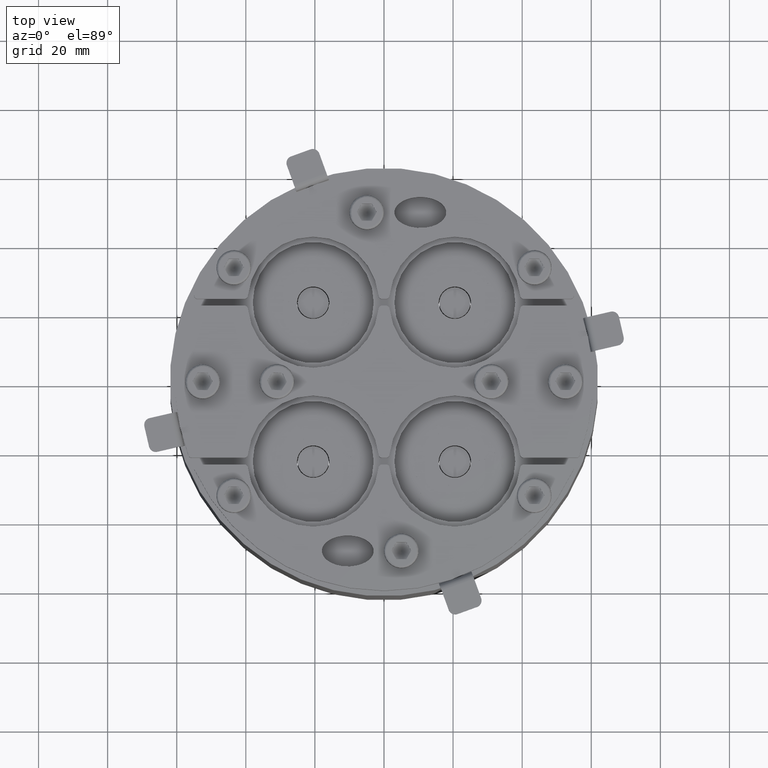
[diagram: clean part render]
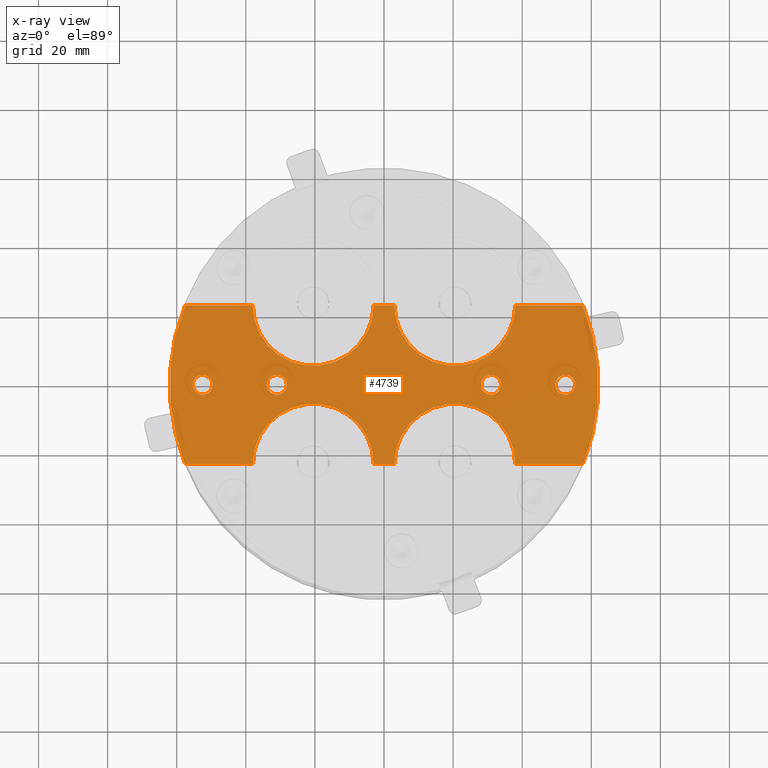
[diagram: x-ray — body ghosted, one internal face saturated and labeled with its STEP entity id]
A machine part, top view, then the same camera in x-ray: the body is ghosted and one INTERNAL B-rep face — a face not visible from any outside direction — is saturated and labeled: STEP entity #4739.
In plain terms, the highlighted planar face has unit normal (0, -0, 1).
Its self-contained STEP definition (entity closure, byte-faithful):
#383=FACE_BOUND('',#1003,.T.);
#384=FACE_BOUND('',#1004,.T.);
#385=FACE_BOUND('',#1005,.T.);
#386=FACE_BOUND('',#1006,.T.);
#461=PLANE('',#5473);
#694=FACE_OUTER_BOUND('',#1002,.T.);
#1002=EDGE_LOOP('',(#3991,#3992,#3993,#3994,#3995,#3996,#3997,#3998,#3999,
#4000,#4001,#4002));
#1003=EDGE_LOOP('',(#4003));
#1004=EDGE_LOOP('',(#4004));
#1005=EDGE_LOOP('',(#4005));
#1006=EDGE_LOOP('',(#4006));
#1322=LINE('',#8063,#1689);
#1327=LINE('',#8077,#1694);
#1331=LINE('',#8089,#1698);
#1335=LINE('',#8101,#1702);
#1339=LINE('',#8113,#1706);
#1343=LINE('',#8125,#1710);
#1689=VECTOR('',#6566,10.);
#1694=VECTOR('',#6579,10.);
#1698=VECTOR('',#6591,10.);
#1702=VECTOR('',#6603,10.);
#1706=VECTOR('',#6615,10.);
#1710=VECTOR('',#6627,10.);
#2021=CIRCLE('',#5437,2.85);
#2023=CIRCLE('',#5440,2.85);
#2025=CIRCLE('',#5443,2.85);
#2027=CIRCLE('',#5446,2.85);
#2029=CIRCLE('',#5450,17.5);
#2031=CIRCLE('',#5454,17.5);
#2033=CIRCLE('',#5458,62.);
#2035=CIRCLE('',#5462,17.5);
#2037=CIRCLE('',#5466,17.5);
#2039=CIRCLE('',#5470,62.);
#2357=VERTEX_POINT('',#8037);
#2359=VERTEX_POINT('',#8043);
#2361=VERTEX_POINT('',#8049);
#2363=VERTEX_POINT('',#8055);
#2365=VERTEX_POINT('',#8061);
#2366=VERTEX_POINT('',#8062);
#2369=VERTEX_POINT('',#8070);
#2371=VERTEX_POINT('',#8076);
#2373=VERTEX_POINT('',#8082);
#2375=VERTEX_POINT('',#8088);
#2377=VERTEX_POINT('',#8094);
#2379=VERTEX_POINT('',#8100);
#2381=VERTEX_POINT('',#8106);
#2383=VERTEX_POINT('',#8112);
#2385=VERTEX_POINT('',#8118);
#2387=VERTEX_POINT('',#8124);
#2905=EDGE_CURVE('',#2357,#2357,#2021,.T.);
#2908=EDGE_CURVE('',#2359,#2359,#2023,.T.);
#2911=EDGE_CURVE('',#2361,#2361,#2025,.T.);
#2914=EDGE_CURVE('',#2363,#2363,#2027,.T.);
#2917=EDGE_CURVE('',#2365,#2366,#1322,.T.);
#2921=EDGE_CURVE('',#2369,#2365,#2029,.T.);
#2924=EDGE_CURVE('',#2371,#2369,#1327,.T.);
#2927=EDGE_CURVE('',#2373,#2371,#2031,.T.);
#2930=EDGE_CURVE('',#2375,#2373,#1331,.T.);
#2933=EDGE_CURVE('',#2377,#2375,#2033,.T.);
#2936=EDGE_CURVE('',#2379,#2377,#1335,.T.);
#2939=EDGE_CURVE('',#2381,#2379,#2035,.T.);
#2942=EDGE_CURVE('',#2383,#2381,#1339,.T.);
#2945=EDGE_CURVE('',#2385,#2383,#2037,.T.);
#2948=EDGE_CURVE('',#2387,#2385,#1343,.T.);
#2951=EDGE_CURVE('',#2366,#2387,#2039,.T.);
#3991=ORIENTED_EDGE('',*,*,#2951,.F.);
#3992=ORIENTED_EDGE('',*,*,#2917,.F.);
#3993=ORIENTED_EDGE('',*,*,#2921,.F.);
#3994=ORIENTED_EDGE('',*,*,#2924,.F.);
#3995=ORIENTED_EDGE('',*,*,#2927,.F.);
#3996=ORIENTED_EDGE('',*,*,#2930,.F.);
#3997=ORIENTED_EDGE('',*,*,#2933,.F.);
#3998=ORIENTED_EDGE('',*,*,#2936,.F.);
#3999=ORIENTED_EDGE('',*,*,#2939,.F.);
#4000=ORIENTED_EDGE('',*,*,#2942,.F.);
#4001=ORIENTED_EDGE('',*,*,#2945,.F.);
#4002=ORIENTED_EDGE('',*,*,#2948,.F.);
#4003=ORIENTED_EDGE('',*,*,#2905,.T.);
#4004=ORIENTED_EDGE('',*,*,#2908,.T.);
#4005=ORIENTED_EDGE('',*,*,#2911,.T.);
#4006=ORIENTED_EDGE('',*,*,#2914,.T.);
#4739=ADVANCED_FACE('',(#694,#383,#384,#385,#386),#461,.F.);
#5437=AXIS2_PLACEMENT_3D('',#8038,#6538,#6539);
#5440=AXIS2_PLACEMENT_3D('',#8044,#6545,#6546);
#5443=AXIS2_PLACEMENT_3D('',#8050,#6552,#6553);
#5446=AXIS2_PLACEMENT_3D('',#8056,#6559,#6560);
#5450=AXIS2_PLACEMENT_3D('',#8071,#6572,#6573);
#5454=AXIS2_PLACEMENT_3D('',#8083,#6584,#6585);
#5458=AXIS2_PLACEMENT_3D('',#8095,#6596,#6597);
#5462=AXIS2_PLACEMENT_3D('',#8107,#6608,#6609);
#5466=AXIS2_PLACEMENT_3D('',#8119,#6620,#6621);
#5470=AXIS2_PLACEMENT_3D('',#8130,#6632,#6633);
#5473=AXIS2_PLACEMENT_3D('',#8133,#6638,#6639);
#6538=DIRECTION('center_axis',(0.,0.,1.));
#6539=DIRECTION('ref_axis',(1.,0.,0.));
#6545=DIRECTION('center_axis',(0.,0.,1.));
#6546=DIRECTION('ref_axis',(1.,0.,0.));
#6552=DIRECTION('center_axis',(0.,0.,1.));
#6553=DIRECTION('ref_axis',(1.,0.,0.));
#6559=DIRECTION('center_axis',(0.,0.,1.));
#6560=DIRECTION('ref_axis',(1.,0.,0.));
#6566=DIRECTION('',(-1.,0.,0.));
#6572=DIRECTION('center_axis',(0.,0.,-1.));
#6573=DIRECTION('ref_axis',(-1.,0.,0.));
#6579=DIRECTION('',(-1.,0.,0.));
#6584=DIRECTION('center_axis',(0.,0.,-1.));
#6585=DIRECTION('ref_axis',(-1.,0.,0.));
#6591=DIRECTION('',(-1.,0.,0.));
#6596=DIRECTION('center_axis',(0.,0.,1.));
#6597=DIRECTION('ref_axis',(1.,0.,0.));
#6603=DIRECTION('',(1.,0.,0.));
#6608=DIRECTION('center_axis',(0.,0.,-1.));
#6609=DIRECTION('ref_axis',(-1.,0.,0.));
#6615=DIRECTION('',(1.,0.,0.));
#6620=DIRECTION('center_axis',(0.,0.,-1.));
#6621=DIRECTION('ref_axis',(-1.,0.,0.));
#6627=DIRECTION('',(1.,0.,0.));
#6632=DIRECTION('center_axis',(0.,0.,1.));
#6633=DIRECTION('ref_axis',(1.,0.,0.));
#6638=DIRECTION('center_axis',(0.,0.,1.));
#6639=DIRECTION('ref_axis',(1.,0.,0.));
#8037=CARTESIAN_POINT('',(49.65,-3.14352690272614E-14,0.));
#8038=CARTESIAN_POINT('Origin',(52.5,-3.10862446895044E-14,0.));
#8043=CARTESIAN_POINT('',(-55.35,-1.81125927317595E-14,0.));
#8044=CARTESIAN_POINT('Origin',(-52.5,-1.77635683940025E-14,0.));
#8049=CARTESIAN_POINT('',(-33.85,-3.49024337756996E-16,0.));
#8050=CARTESIAN_POINT('Origin',(-31.,0.,0.));
#8055=CARTESIAN_POINT('',(28.15,-3.49024337756996E-16,0.));
#8056=CARTESIAN_POINT('Origin',(31.,0.,0.));
#8061=CARTESIAN_POINT('',(-38.,23.,0.));
#8062=CARTESIAN_POINT('',(-57.5760366819391,23.,0.));
#8063=CARTESIAN_POINT('',(-38.,23.,0.));
#8070=CARTESIAN_POINT('',(-3.,23.,0.));
#8071=CARTESIAN_POINT('Origin',(-20.5,23.,0.));
#8076=CARTESIAN_POINT('',(3.00000000000001,23.,0.));
#8077=CARTESIAN_POINT('',(3.00000000000001,23.,0.));
#8082=CARTESIAN_POINT('',(38.,23.,0.));
#8083=CARTESIAN_POINT('Origin',(20.5,23.,0.));
#8088=CARTESIAN_POINT('',(57.5760366819391,23.,0.));
#8089=CARTESIAN_POINT('',(57.5760366819391,23.,0.));
#8094=CARTESIAN_POINT('',(57.5760366819391,-23.,0.));
#8095=CARTESIAN_POINT('Origin',(0.,0.,0.));
#8100=CARTESIAN_POINT('',(38.,-23.,0.));
#8101=CARTESIAN_POINT('',(38.,-23.,0.));
#8106=CARTESIAN_POINT('',(3.00000000000001,-23.,0.));
#8107=CARTESIAN_POINT('Origin',(20.5,-23.,0.));
#8112=CARTESIAN_POINT('',(-3.,-23.,0.));
#8113=CARTESIAN_POINT('',(-3.,-23.,0.));
#8118=CARTESIAN_POINT('',(-38.,-23.,0.));
#8119=CARTESIAN_POINT('Origin',(-20.5,-23.,0.));
#8124=CARTESIAN_POINT('',(-57.5760366819391,-23.,0.));
#8125=CARTESIAN_POINT('',(-57.5760366819391,-23.,0.));
#8130=CARTESIAN_POINT('Origin',(0.,0.,0.));
#8133=CARTESIAN_POINT('Origin',(-3.27009837789638E-15,-2.86133608065934E-15,
0.));